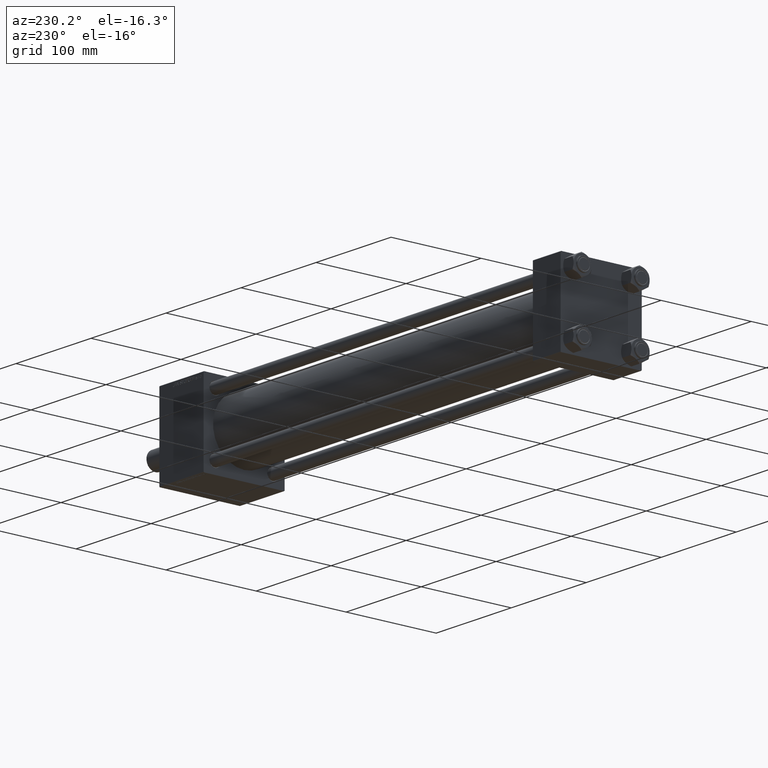
[diagram: clean part render]
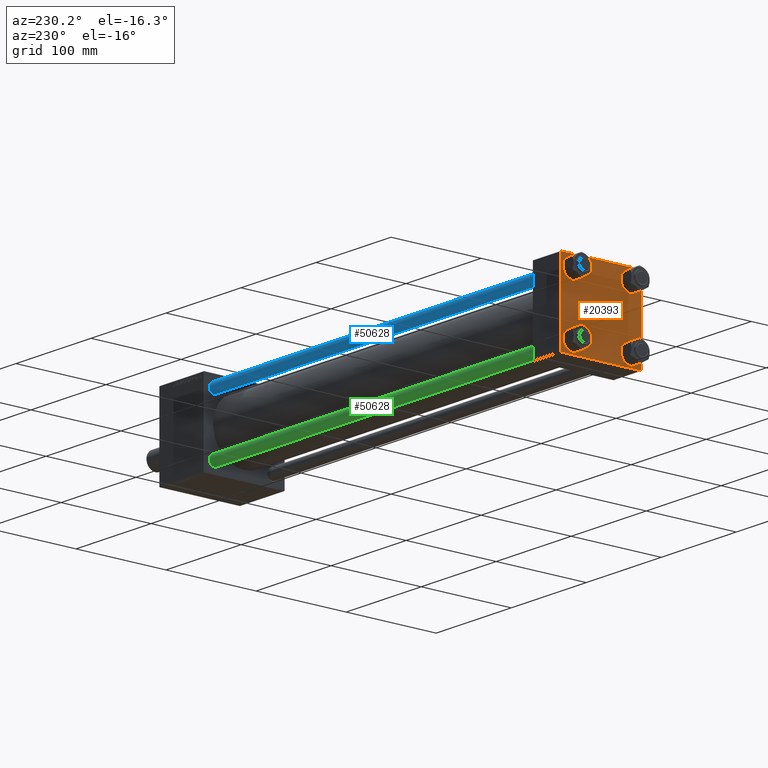
[diagram: same view with three faces highlighted in distinct colors, each labeled with its STEP entity id]
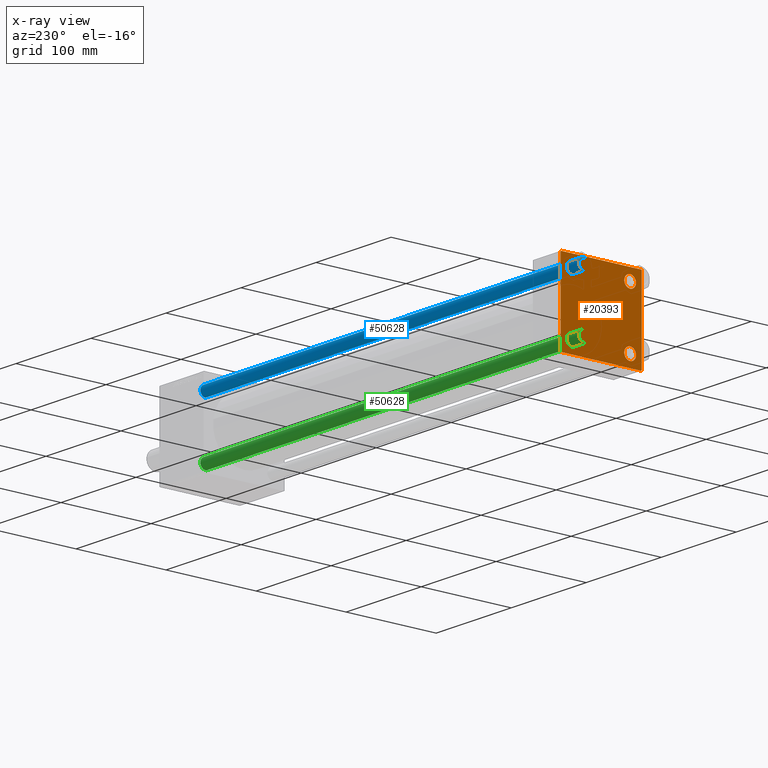
[diagram: x-ray of the same camera — body ghosted, the three highlighted faces saturated]
A machine part, auxiliary view with three faces highlighted in distinct colors.
The next image is the same camera in x-ray (body ghosted, the three faces saturated) — at least one of them is partly hidden behind the body in this view.
Their STEP definitions:

[orange] entity #20393 — the highlighted planar face has unit normal (-1, 0, 0).
#1135 = ORIENTED_EDGE ( 'NONE', *, *, #49948, .T. ) ;
#1596 = DIRECTION ( 'NONE',  ( -0.000000000000000000, 0.7071067811865425767, 0.7071067811865524577 ) ) ;
#1682 = CARTESIAN_POINT ( 'NONE',  ( 0.000000000000000000, 44.99999999999998579, -44.99999999999998579 ) ) ;
#2078 = DIRECTION ( 'NONE',  ( 0.000000000000000000, 0.000000000000000000, 1.000000000000000000 ) ) ;
#2351 = EDGE_CURVE ( 'NONE', #16631, #18656, #14692, .T. ) ;
#2923 = LINE ( 'NONE', #18613, #44501 ) ;
#3427 = CARTESIAN_POINT ( 'NONE',  ( 0.000000000000000000, 32.14999999999999147, 38.64999999999999147 ) ) ;
#3455 = EDGE_CURVE ( 'NONE', #48877, #16552, #29980, .T. ) ;
#3495 = DIRECTION ( 'NONE',  ( -0.000000000000000000, 0.000000000000000000, 1.000000000000000000 ) ) ;
#4191 = LINE ( 'NONE', #19118, #19360 ) ;
#4270 = VERTEX_POINT ( 'NONE', #32492 ) ;
#4322 = LINE ( 'NONE', #1682, #50865 ) ;
#4412 = EDGE_CURVE ( 'NONE', #32509, #18656, #2923, .T. ) ;
#4575 = DIRECTION ( 'NONE',  ( 0.000000000000000000, 0.000000000000000000, 1.000000000000000000 ) ) ;
#5167 = AXIS2_PLACEMENT_3D ( 'NONE', #19544, #50406, #7723 ) ;
#5447 = LINE ( 'NONE', #25498, #37474 ) ;
#6028 = DIRECTION ( 'NONE',  ( 0.000000000000000000, 7.709882115452476934E-17, -1.000000000000000000 ) ) ;
#7537 = CARTESIAN_POINT ( 'NONE',  ( 0.000000000000000000, -32.14999999999997726, 25.64999999999999147 ) ) ;
#7723 = DIRECTION ( 'NONE',  ( 0.000000000000000000, 0.000000000000000000, 1.000000000000000000 ) ) ;
#7789 = EDGE_LOOP ( 'NONE', ( #40394, #46850 ) ) ;
#8021 = VECTOR ( 'NONE', #35545, 1000.000000000000000 ) ;
#8435 = CIRCLE ( 'NONE', #5167, 6.500000000000019540 ) ;
#9598 = EDGE_CURVE ( 'NONE', #34760, #10194, #8435, .T. ) ;
#9845 = DIRECTION ( 'NONE',  ( 0.000000000000000000, 0.000000000000000000, 1.000000000000000000 ) ) ;
#10194 = VERTEX_POINT ( 'NONE', #7537 ) ;
#10298 = VERTEX_POINT ( 'NONE', #17533 ) ;
#10937 = ORIENTED_EDGE ( 'NONE', *, *, #17776, .T. ) ;
#10959 = CARTESIAN_POINT ( 'NONE',  ( 0.000000000000000000, 44.99999999999998579, 45.00000000000001421 ) ) ;
#11127 = VERTEX_POINT ( 'NONE', #49724 ) ;
#11441 = CARTESIAN_POINT ( 'NONE',  ( 0.000000000000000000, 32.14999999999999147, -25.65000000000002700 ) ) ;
#11827 = ORIENTED_EDGE ( 'NONE', *, *, #31401, .T. ) ;
#12066 = DIRECTION ( 'NONE',  ( -0.000000000000000000, -0.7071067811865474617, -0.7071067811865474617 ) ) ;
#13485 = CARTESIAN_POINT ( 'NONE',  ( 0.000000000000000000, -32.14999999999997726, 32.15000000000001279 ) ) ;
#14136 = EDGE_CURVE ( 'NONE', #10194, #34760, #25839, .T. ) ;
#14228 = DIRECTION ( 'NONE',  ( 0.000000000000000000, 0.000000000000000000, 1.000000000000000000 ) ) ;
#14409 = CARTESIAN_POINT ( 'NONE',  ( 0.000000000000000000, -44.49999999999995737, 45.00000000000000000 ) ) ;
#14418 = CARTESIAN_POINT ( 'NONE',  ( 0.000000000000000000, -32.14999999999997726, -32.15000000000001279 ) ) ;
#14692 = LINE ( 'NONE', #34438, #48592 ) ;
#14782 = CIRCLE ( 'NONE', #22143, 6.499999999999977796 ) ;
#14975 = VERTEX_POINT ( 'NONE', #23050 ) ;
#15081 = DIRECTION ( 'NONE',  ( 0.000000000000000000, 0.000000000000000000, -1.000000000000000000 ) ) ;
#16301 = ORIENTED_EDGE ( 'NONE', *, *, #24906, .F. ) ;
#16552 = VERTEX_POINT ( 'NONE', #22937 ) ;
#16631 = VERTEX_POINT ( 'NONE', #20073 ) ;
#16956 = FACE_BOUND ( 'NONE', #29250, .T. ) ;
#17022 = VERTEX_POINT ( 'NONE', #19173 ) ;
#17039 = CARTESIAN_POINT ( 'NONE',  ( 0.000000000000000000, 32.14999999999999147, 32.15000000000000568 ) ) ;
#17089 = DIRECTION ( 'NONE',  ( 0.000000000000000000, 0.000000000000000000, 1.000000000000000000 ) ) ;
#17133 = ORIENTED_EDGE ( 'NONE', *, *, #36312, .T. ) ;
#17533 = CARTESIAN_POINT ( 'NONE',  ( 0.000000000000000000, 44.49999999999998579, 45.00000000000001421 ) ) ;
#17776 = EDGE_CURVE ( 'NONE', #10298, #48877, #4191, .T. ) ;
#17823 = CARTESIAN_POINT ( 'NONE',  ( 0.000000000000000000, -32.14999999999997726, 38.65000000000003411 ) ) ;
#18128 = CARTESIAN_POINT ( 'NONE',  ( 0.000000000000000000, -32.14999999999997726, -25.65000000000003411 ) ) ;
#18613 = CARTESIAN_POINT ( 'NONE',  ( 0.000000000000000000, -45.00000000000000711, 45.00000000000000000 ) ) ;
#18637 = VERTEX_POINT ( 'NONE', #18128 ) ;
#18656 = VERTEX_POINT ( 'NONE', #30941 ) ;
#19118 = CARTESIAN_POINT ( 'NONE',  ( 0.000000000000000000, 44.74999999999999289, 44.74999999999999289 ) ) ;
#19173 = CARTESIAN_POINT ( 'NONE',  ( 0.000000000000000000, 32.14999999999999147, -38.64999999999998437 ) ) ;
#19347 = AXIS2_PLACEMENT_3D ( 'NONE', #17039, #45041, #9845 ) ;
#19356 = AXIS2_PLACEMENT_3D ( 'NONE', #40579, #31481, #3495 ) ;
#19360 = VECTOR ( 'NONE', #23229, 1000.000000000000114 ) ;
#19544 = CARTESIAN_POINT ( 'NONE',  ( 0.000000000000000000, -32.14999999999997726, 32.15000000000001279 ) ) ;
#19900 = LINE ( 'NONE', #47396, #8021 ) ;
#20073 = CARTESIAN_POINT ( 'NONE',  ( 0.000000000000000000, -44.49999999999995737, -45.00000000000000000 ) ) ;
#20081 = EDGE_CURVE ( 'NONE', #32509, #42035, #5447, .T. ) ;
#20180 = DIRECTION ( 'NONE',  ( 0.000000000000000000, 0.000000000000000000, 1.000000000000000000 ) ) ;
#20227 = ORIENTED_EDGE ( 'NONE', *, *, #47758, .T. ) ;
#20393 = ADVANCED_FACE ( 'NONE', ( #16956, #40836, #32622, #44698, #48313 ), #24924, .T. ) ;
#21815 = AXIS2_PLACEMENT_3D ( 'NONE', #33736, #49436, #14228 ) ;
#22143 = AXIS2_PLACEMENT_3D ( 'NONE', #43379, #23357, #4575 ) ;
#22937 = CARTESIAN_POINT ( 'NONE',  ( 0.000000000000000000, 44.99999999999998579, -44.49999999999995737 ) ) ;
#22977 = EDGE_LOOP ( 'NONE', ( #34307, #20227 ) ) ;
#23050 = CARTESIAN_POINT ( 'NONE',  ( 0.000000000000000000, 32.14999999999999147, 25.65000000000002700 ) ) ;
#23229 = DIRECTION ( 'NONE',  ( 0.000000000000000000, 0.7071067811865474617, -0.7071067811865474617 ) ) ;
#23357 = DIRECTION ( 'NONE',  ( 1.000000000000000000, -0.000000000000000000, 0.000000000000000000 ) ) ;
#23509 = ORIENTED_EDGE ( 'NONE', *, *, #3455, .T. ) ;
#23534 = DIRECTION ( 'NONE',  ( 1.000000000000000000, -0.000000000000000000, 0.000000000000000000 ) ) ;
#24789 = VERTEX_POINT ( 'NONE', #11441 ) ;
#24906 = EDGE_CURVE ( 'NONE', #10298, #42035, #19900, .T. ) ;
#24924 = PLANE ( 'NONE',  #19356 ) ;
#25105 = VECTOR ( 'NONE', #12066, 1000.000000000000114 ) ;
#25498 = CARTESIAN_POINT ( 'NONE',  ( -0.000000000000000000, -44.75000000000029843, 44.74999999999967315 ) ) ;
#25839 = CIRCLE ( 'NONE', #46332, 6.500000000000019540 ) ;
#26048 = ORIENTED_EDGE ( 'NONE', *, *, #20081, .T. ) ;
#26753 = EDGE_CURVE ( 'NONE', #17022, #24789, #34312, .T. ) ;
#27151 = CARTESIAN_POINT ( 'NONE',  ( 0.000000000000000000, 32.14999999999999147, -32.15000000000000568 ) ) ;
#27557 = CIRCLE ( 'NONE', #19347, 6.499999999999977796 ) ;
#28496 = LINE ( 'NONE', #39796, #25105 ) ;
#29250 = EDGE_LOOP ( 'NONE', ( #46461, #48481 ) ) ;
#29980 = LINE ( 'NONE', #10959, #30492 ) ;
#30045 = VERTEX_POINT ( 'NONE', #3427 ) ;
#30451 = EDGE_LOOP ( 'NONE', ( #1135, #11827 ) ) ;
#30492 = VECTOR ( 'NONE', #15081, 1000.000000000000000 ) ;
#30941 = CARTESIAN_POINT ( 'NONE',  ( 0.000000000000000000, -45.00000000000000000, -44.49999999999995737 ) ) ;
#31401 = EDGE_CURVE ( 'NONE', #14975, #30045, #27557, .T. ) ;
#31481 = DIRECTION ( 'NONE',  ( -1.000000000000000000, 0.000000000000000000, -0.000000000000000000 ) ) ;
#31991 = DIRECTION ( 'NONE',  ( 1.000000000000000000, -0.000000000000000000, 0.000000000000000000 ) ) ;
#32492 = CARTESIAN_POINT ( 'NONE',  ( 0.000000000000000000, -32.14999999999997726, -38.64999999999999147 ) ) ;
#32509 = VERTEX_POINT ( 'NONE', #48727 ) ;
#32614 = ORIENTED_EDGE ( 'NONE', *, *, #4412, .F. ) ;
#32622 = FACE_BOUND ( 'NONE', #7789, .T. ) ;
#33736 = CARTESIAN_POINT ( 'NONE',  ( 0.000000000000000000, 32.14999999999999147, -32.15000000000000568 ) ) ;
#34307 = ORIENTED_EDGE ( 'NONE', *, *, #36065, .T. ) ;
#34312 = CIRCLE ( 'NONE', #40031, 6.499999999999977796 ) ;
#34438 = CARTESIAN_POINT ( 'NONE',  ( 0.000000000000000000, -44.74999999999998579, -44.74999999999998579 ) ) ;
#34760 = VERTEX_POINT ( 'NONE', #17823 ) ;
#34853 = EDGE_CURVE ( 'NONE', #24789, #17022, #35709, .T. ) ;
#35545 = DIRECTION ( 'NONE',  ( 0.000000000000000000, -1.000000000000000000, -1.541976423090495387E-16 ) ) ;
#35575 = CARTESIAN_POINT ( 'NONE',  ( 0.000000000000000000, 32.14999999999999147, 32.15000000000000568 ) ) ;
#35709 = CIRCLE ( 'NONE', #21815, 6.499999999999977796 ) ;
#36065 = EDGE_CURVE ( 'NONE', #18637, #4270, #49776, .T. ) ;
#36312 = EDGE_CURVE ( 'NONE', #16552, #11127, #28496, .T. ) ;
#37474 = VECTOR ( 'NONE', #1596, 1000.000000000000114 ) ;
#38902 = ORIENTED_EDGE ( 'NONE', *, *, #47767, .T. ) ;
#39374 = CARTESIAN_POINT ( 'NONE',  ( 0.000000000000000000, 44.99999999999998579, 44.50000000000001421 ) ) ;
#39796 = CARTESIAN_POINT ( 'NONE',  ( 0.000000000000000000, 44.74999999999998579, -44.74999999999998579 ) ) ;
#40031 = AXIS2_PLACEMENT_3D ( 'NONE', #27151, #43073, #50552 ) ;
#40045 = EDGE_LOOP ( 'NONE', ( #23509, #17133, #38902, #47344, #32614, #26048, #16301, #10937 ) ) ;
#40394 = ORIENTED_EDGE ( 'NONE', *, *, #34853, .T. ) ;
#40579 = CARTESIAN_POINT ( 'NONE',  ( 0.000000000000000000, 0.000000000000000000, 0.000000000000000000 ) ) ;
#40836 = FACE_BOUND ( 'NONE', #22977, .T. ) ;
#42035 = VERTEX_POINT ( 'NONE', #14409 ) ;
#43073 = DIRECTION ( 'NONE',  ( 1.000000000000000000, -0.000000000000000000, 0.000000000000000000 ) ) ;
#43130 = DIRECTION ( 'NONE',  ( 0.000000000000000000, -1.000000000000000000, -1.541976423090495633E-16 ) ) ;
#43379 = CARTESIAN_POINT ( 'NONE',  ( 0.000000000000000000, -32.14999999999997726, -32.15000000000001279 ) ) ;
#44501 = VECTOR ( 'NONE', #6028, 1000.000000000000000 ) ;
#44698 = FACE_BOUND ( 'NONE', #30451, .T. ) ;
#45041 = DIRECTION ( 'NONE',  ( 1.000000000000000000, -0.000000000000000000, 0.000000000000000000 ) ) ;
#45756 = DIRECTION ( 'NONE',  ( 1.000000000000000000, -0.000000000000000000, 0.000000000000000000 ) ) ;
#46011 = AXIS2_PLACEMENT_3D ( 'NONE', #35575, #23534, #20180 ) ;
#46332 = AXIS2_PLACEMENT_3D ( 'NONE', #13485, #31991, #17089 ) ;
#46461 = ORIENTED_EDGE ( 'NONE', *, *, #9598, .T. ) ;
#46850 = ORIENTED_EDGE ( 'NONE', *, *, #26753, .T. ) ;
#47264 = AXIS2_PLACEMENT_3D ( 'NONE', #14418, #45756, #2078 ) ;
#47344 = ORIENTED_EDGE ( 'NONE', *, *, #2351, .T. ) ;
#47396 = CARTESIAN_POINT ( 'NONE',  ( 0.000000000000000000, 44.99999999999998579, 45.00000000000001421 ) ) ;
#47665 = CIRCLE ( 'NONE', #46011, 6.499999999999977796 ) ;
#47758 = EDGE_CURVE ( 'NONE', #4270, #18637, #14782, .T. ) ;
#47767 = EDGE_CURVE ( 'NONE', #11127, #16631, #4322, .T. ) ;
#48313 = FACE_OUTER_BOUND ( 'NONE', #40045, .T. ) ;
#48481 = ORIENTED_EDGE ( 'NONE', *, *, #14136, .T. ) ;
#48592 = VECTOR ( 'NONE', #50148, 1000.000000000000114 ) ;
#48727 = CARTESIAN_POINT ( 'NONE',  ( 0.000000000000000000, -45.00000000000000711, 44.49999999999997158 ) ) ;
#48877 = VERTEX_POINT ( 'NONE', #39374 ) ;
#49436 = DIRECTION ( 'NONE',  ( 1.000000000000000000, -0.000000000000000000, 0.000000000000000000 ) ) ;
#49724 = CARTESIAN_POINT ( 'NONE',  ( 0.000000000000000000, 44.49999999999998579, -44.99999999999998579 ) ) ;
#49776 = CIRCLE ( 'NONE', #47264, 6.499999999999977796 ) ;
#49948 = EDGE_CURVE ( 'NONE', #30045, #14975, #47665, .T. ) ;
#50148 = DIRECTION ( 'NONE',  ( 0.000000000000000000, -0.7071067811865474617, 0.7071067811865474617 ) ) ;
#50406 = DIRECTION ( 'NONE',  ( 1.000000000000000000, -0.000000000000000000, 0.000000000000000000 ) ) ;
#50552 = DIRECTION ( 'NONE',  ( 0.000000000000000000, 0.000000000000000000, 1.000000000000000000 ) ) ;
#50865 = VECTOR ( 'NONE', #43130, 1000.000000000000000 ) ;

[blue] entity #50628 — the highlighted cylindrical surface (edge-blend (fillet) strip) has radius 6 mm, axis along (-1, 0, 0).
#40 = AXIS2_PLACEMENT_3D ( 'NONE', #12795, #40783, #21535 ) ;
#1010 = CARTESIAN_POINT ( 'NONE',  ( 0.000000000000000000, 0.000000000000000000, 0.5000000000000559552 ) ) ;
#1730 = VERTEX_POINT ( 'NONE', #18907 ) ;
#2468 = VERTEX_POINT ( 'NONE', #31097 ) ;
#3396 = DIRECTION ( 'NONE',  ( -0.000000000000000000, -0.000000000000000000, -1.000000000000000000 ) ) ;
#5619 = CARTESIAN_POINT ( 'NONE',  ( 6.000000000000000888, 7.347880794884120722E-16, 504.5000000000001705 ) ) ;
#12795 = CARTESIAN_POINT ( 'NONE',  ( 0.000000000000000000, 0.000000000000000000, 505.0000000000000000 ) ) ;
#12946 = CARTESIAN_POINT ( 'NONE',  ( 0.000000000000000000, 0.000000000000000000, 504.5000000000001705 ) ) ;
#15240 = EDGE_CURVE ( 'NONE', #25355, #1730, #16022, .T. ) ;
#16022 = LINE ( 'NONE', #23239, #29972 ) ;
#16371 = AXIS2_PLACEMENT_3D ( 'NONE', #12946, #28617, #36301 ) ;
#18907 = CARTESIAN_POINT ( 'NONE',  ( 6.000000000000000888, 7.347880794884120722E-16, 0.5000000000000559552 ) ) ;
#21535 = DIRECTION ( 'NONE',  ( -1.000000000000000000, 0.000000000000000000, 0.000000000000000000 ) ) ;
#21631 = VERTEX_POINT ( 'NONE', #41566 ) ;
#22502 = ORIENTED_EDGE ( 'NONE', *, *, #25199, .T. ) ;
#23239 = CARTESIAN_POINT ( 'NONE',  ( 6.000000000000000888, 7.347880794884120722E-16, 505.0000000000000000 ) ) ;
#25199 = EDGE_CURVE ( 'NONE', #1730, #2468, #48232, .T. ) ;
#25355 = VERTEX_POINT ( 'NONE', #5619 ) ;
#26306 = EDGE_LOOP ( 'NONE', ( #29273, #43478, #22502, #42675 ) ) ;
#27582 = DIRECTION ( 'NONE',  ( -0.000000000000000000, -0.000000000000000000, -1.000000000000000000 ) ) ;
#28617 = DIRECTION ( 'NONE',  ( 0.000000000000000000, 0.000000000000000000, -1.000000000000000000 ) ) ;
#29273 = ORIENTED_EDGE ( 'NONE', *, *, #43468, .T. ) ;
#29972 = VECTOR ( 'NONE', #27582, 1000.000000000000000 ) ;
#31097 = CARTESIAN_POINT ( 'NONE',  ( -6.000000000000000888, 0.000000000000000000, 0.5000000000000559552 ) ) ;
#34736 = DIRECTION ( 'NONE',  ( -0.000000000000000000, -0.000000000000000000, 1.000000000000000000 ) ) ;
#35933 = VECTOR ( 'NONE', #3396, 1000.000000000000000 ) ;
#36301 = DIRECTION ( 'NONE',  ( 1.000000000000000000, 0.000000000000000000, 0.000000000000000000 ) ) ;
#38342 = LINE ( 'NONE', #49936, #35933 ) ;
#39548 = DIRECTION ( 'NONE',  ( 1.000000000000000000, 0.000000000000000000, 0.000000000000000000 ) ) ;
#40783 = DIRECTION ( 'NONE',  ( -0.000000000000000000, -0.000000000000000000, -1.000000000000000000 ) ) ;
#41566 = CARTESIAN_POINT ( 'NONE',  ( -6.000000000000000888, 0.000000000000000000, 504.5000000000001705 ) ) ;
#41802 = EDGE_CURVE ( 'NONE', #21631, #2468, #38342, .T. ) ;
#41810 = CIRCLE ( 'NONE', #16371, 6.000000000000000888 ) ;
#42473 = AXIS2_PLACEMENT_3D ( 'NONE', #1010, #34736, #39548 ) ;
#42675 = ORIENTED_EDGE ( 'NONE', *, *, #41802, .F. ) ;
#43468 = EDGE_CURVE ( 'NONE', #21631, #25355, #41810, .T. ) ;
#43478 = ORIENTED_EDGE ( 'NONE', *, *, #15240, .T. ) ;
#44908 = FACE_OUTER_BOUND ( 'NONE', #26306, .T. ) ;
#48007 = CYLINDRICAL_SURFACE ( 'NONE', #40, 6.000000000000000888 ) ;
#48232 = CIRCLE ( 'NONE', #42473, 6.000000000000000888 ) ;
#49936 = CARTESIAN_POINT ( 'NONE',  ( -6.000000000000000888, 0.000000000000000000, 505.0000000000000000 ) ) ;
#50628 = ADVANCED_FACE ( 'NONE', ( #44908 ), #48007, .T. ) ;

[green] entity #50628 — the highlighted cylindrical surface (edge-blend (fillet) strip) has radius 6 mm, axis along (1, -0, 0).
#40 = AXIS2_PLACEMENT_3D ( 'NONE', #12795, #40783, #21535 ) ;
#1010 = CARTESIAN_POINT ( 'NONE',  ( 0.000000000000000000, 0.000000000000000000, 0.5000000000000559552 ) ) ;
#1730 = VERTEX_POINT ( 'NONE', #18907 ) ;
#2468 = VERTEX_POINT ( 'NONE', #31097 ) ;
#3396 = DIRECTION ( 'NONE',  ( -0.000000000000000000, -0.000000000000000000, -1.000000000000000000 ) ) ;
#5619 = CARTESIAN_POINT ( 'NONE',  ( 6.000000000000000888, 7.347880794884120722E-16, 504.5000000000001705 ) ) ;
#12795 = CARTESIAN_POINT ( 'NONE',  ( 0.000000000000000000, 0.000000000000000000, 505.0000000000000000 ) ) ;
#12946 = CARTESIAN_POINT ( 'NONE',  ( 0.000000000000000000, 0.000000000000000000, 504.5000000000001705 ) ) ;
#15240 = EDGE_CURVE ( 'NONE', #25355, #1730, #16022, .T. ) ;
#16022 = LINE ( 'NONE', #23239, #29972 ) ;
#16371 = AXIS2_PLACEMENT_3D ( 'NONE', #12946, #28617, #36301 ) ;
#18907 = CARTESIAN_POINT ( 'NONE',  ( 6.000000000000000888, 7.347880794884120722E-16, 0.5000000000000559552 ) ) ;
#21535 = DIRECTION ( 'NONE',  ( -1.000000000000000000, 0.000000000000000000, 0.000000000000000000 ) ) ;
#21631 = VERTEX_POINT ( 'NONE', #41566 ) ;
#22502 = ORIENTED_EDGE ( 'NONE', *, *, #25199, .T. ) ;
#23239 = CARTESIAN_POINT ( 'NONE',  ( 6.000000000000000888, 7.347880794884120722E-16, 505.0000000000000000 ) ) ;
#25199 = EDGE_CURVE ( 'NONE', #1730, #2468, #48232, .T. ) ;
#25355 = VERTEX_POINT ( 'NONE', #5619 ) ;
#26306 = EDGE_LOOP ( 'NONE', ( #29273, #43478, #22502, #42675 ) ) ;
#27582 = DIRECTION ( 'NONE',  ( -0.000000000000000000, -0.000000000000000000, -1.000000000000000000 ) ) ;
#28617 = DIRECTION ( 'NONE',  ( 0.000000000000000000, 0.000000000000000000, -1.000000000000000000 ) ) ;
#29273 = ORIENTED_EDGE ( 'NONE', *, *, #43468, .T. ) ;
#29972 = VECTOR ( 'NONE', #27582, 1000.000000000000000 ) ;
#31097 = CARTESIAN_POINT ( 'NONE',  ( -6.000000000000000888, 0.000000000000000000, 0.5000000000000559552 ) ) ;
#34736 = DIRECTION ( 'NONE',  ( -0.000000000000000000, -0.000000000000000000, 1.000000000000000000 ) ) ;
#35933 = VECTOR ( 'NONE', #3396, 1000.000000000000000 ) ;
#36301 = DIRECTION ( 'NONE',  ( 1.000000000000000000, 0.000000000000000000, 0.000000000000000000 ) ) ;
#38342 = LINE ( 'NONE', #49936, #35933 ) ;
#39548 = DIRECTION ( 'NONE',  ( 1.000000000000000000, 0.000000000000000000, 0.000000000000000000 ) ) ;
#40783 = DIRECTION ( 'NONE',  ( -0.000000000000000000, -0.000000000000000000, -1.000000000000000000 ) ) ;
#41566 = CARTESIAN_POINT ( 'NONE',  ( -6.000000000000000888, 0.000000000000000000, 504.5000000000001705 ) ) ;
#41802 = EDGE_CURVE ( 'NONE', #21631, #2468, #38342, .T. ) ;
#41810 = CIRCLE ( 'NONE', #16371, 6.000000000000000888 ) ;
#42473 = AXIS2_PLACEMENT_3D ( 'NONE', #1010, #34736, #39548 ) ;
#42675 = ORIENTED_EDGE ( 'NONE', *, *, #41802, .F. ) ;
#43468 = EDGE_CURVE ( 'NONE', #21631, #25355, #41810, .T. ) ;
#43478 = ORIENTED_EDGE ( 'NONE', *, *, #15240, .T. ) ;
#44908 = FACE_OUTER_BOUND ( 'NONE', #26306, .T. ) ;
#48007 = CYLINDRICAL_SURFACE ( 'NONE', #40, 6.000000000000000888 ) ;
#48232 = CIRCLE ( 'NONE', #42473, 6.000000000000000888 ) ;
#49936 = CARTESIAN_POINT ( 'NONE',  ( -6.000000000000000888, 0.000000000000000000, 505.0000000000000000 ) ) ;
#50628 = ADVANCED_FACE ( 'NONE', ( #44908 ), #48007, .T. ) ;